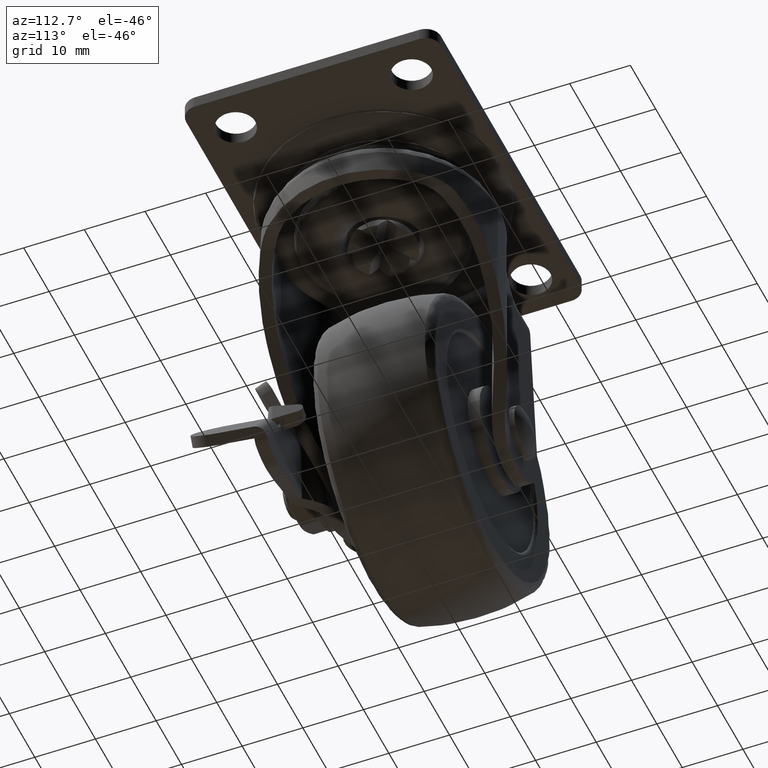
[diagram: clean part render]
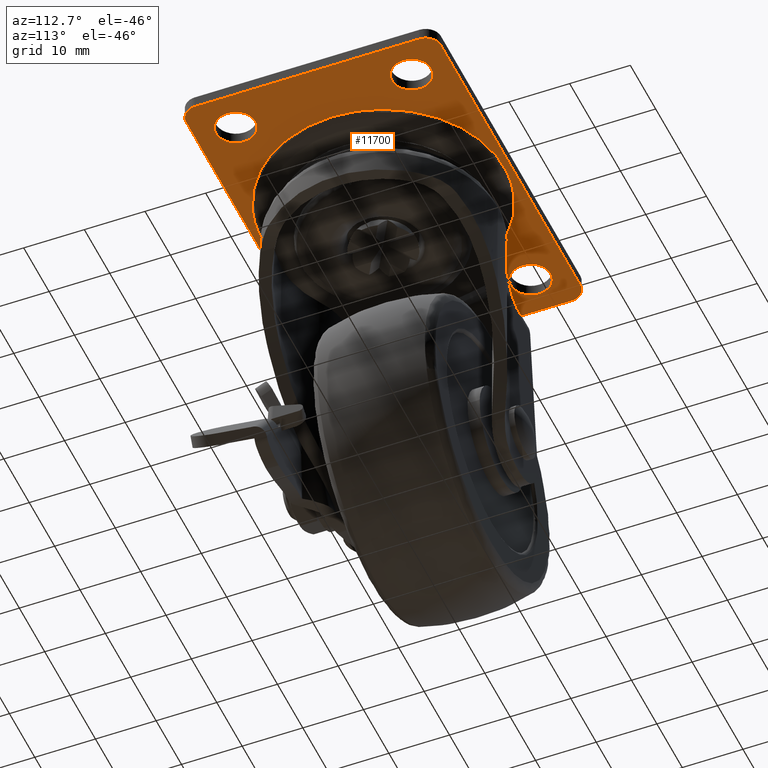
[diagram: same view with one face highlighted and labeled with its STEP entity id]
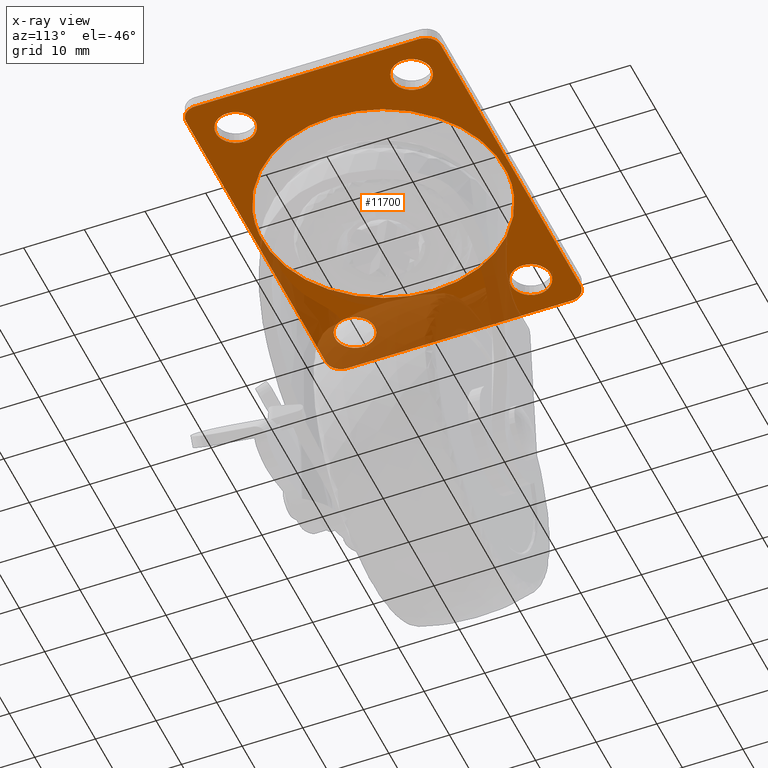
[diagram: x-ray of the same camera — body ghosted, the highlighted face saturated]
A machine part, auxiliary view. The second image highlights one B-rep face of the part: STEP entity #11700.
The next image is the same camera in x-ray: the body ghosted, the highlighted face saturated — about 31% of this face is hidden behind the body in this view.
In plain terms, the highlighted face is a freeform B-spline surface patch.
Its self-contained STEP definition (entity closure, byte-faithful):
#9741=CARTESIAN_POINT('',(-23.301599246305329,17.743938094858450,-1.999963000000160));
#9742=VERTEX_POINT('',#9741);
#9748=CARTESIAN_POINT('',(-20.250007000000000,14.500000000000000,-1.999963000000160));
#9749=VERTEX_POINT('',#9748);
#9750=CARTESIAN_POINT('',(-20.250007000000000,14.500000000000000,-1.999963000000160));
#9751=CARTESIAN_POINT('',(-20.250007000000000,17.557294717248642,-1.999963000000160));
#9752=CARTESIAN_POINT('',(-23.301599246305333,17.743938094858443,-1.999963000000161));
#9760=(BOUNDED_CURVE()B_SPLINE_CURVE(2,(#9750,#9751,#9752),.UNSPECIFIED.,.F.,.U.)B_SPLINE_CURVE_WITH_KNOTS((3,3),(0.500000000000000,0.739332962230990),.UNSPECIFIED.)CURVE()GEOMETRIC_REPRESENTATION_ITEM()RATIONAL_B_SPLINE_CURVE((1.0,0.719603993296027,0.976072041649674))REPRESENTATION_ITEM(''));
#9761=EDGE_CURVE('',#9749,#9742,#9760,.T.);
#9763=CARTESIAN_POINT('',(-23.698414753694671,11.256061905141561,-1.999963000000160));
#9764=VERTEX_POINT('',#9763);
#9765=CARTESIAN_POINT('',(-23.698414753694664,11.256061905141554,-1.999963000000160));
#9766=CARTESIAN_POINT('',(-23.599303480823902,11.250000000000002,-1.999963000000159));
#9767=CARTESIAN_POINT('',(-23.500007000000000,11.250000000000000,-1.999963000000160));
#9768=CARTESIAN_POINT('',(-20.250007000000007,11.250000000000000,-1.999963000000160));
#9769=CARTESIAN_POINT('',(-20.250007000000000,14.500000000000000,-1.999963000000160));
#9777=(BOUNDED_CURVE()B_SPLINE_CURVE(2,(#9765,#9766,#9767,#9768,#9769),.UNSPECIFIED.,.F.,.U.)B_SPLINE_CURVE_WITH_KNOTS((3,2,3),(0.239332962230991,0.250000000000000,0.500000000000000),.UNSPECIFIED.)CURVE()GEOMETRIC_REPRESENTATION_ITEM()RATIONAL_B_SPLINE_CURVE((0.976072041649674,0.987502787890521,1.0,0.707106781186547,1.0))REPRESENTATION_ITEM(''));
#9778=EDGE_CURVE('',#9764,#9749,#9777,.T.);
#9822=CARTESIAN_POINT('',(-26.750007000000000,14.500000000000000,-1.999963000000160));
#9823=VERTEX_POINT('',#9822);
#9824=CARTESIAN_POINT('',(-26.750007000000000,14.500000000000000,-1.999963000000160));
#9825=CARTESIAN_POINT('',(-26.750007000000000,11.442705282751369,-1.999963000000160));
#9826=CARTESIAN_POINT('',(-23.698414753694678,11.256061905141559,-1.999963000000160));
#9834=(BOUNDED_CURVE()B_SPLINE_CURVE(2,(#9824,#9825,#9826),.UNSPECIFIED.,.F.,.U.)B_SPLINE_CURVE_WITH_KNOTS((3,3),(0.0,0.239332962230990),.UNSPECIFIED.)CURVE()GEOMETRIC_REPRESENTATION_ITEM()RATIONAL_B_SPLINE_CURVE((1.0,0.719603993296027,0.976072041649674))REPRESENTATION_ITEM(''));
#9835=EDGE_CURVE('',#9823,#9764,#9834,.T.);
#9837=CARTESIAN_POINT('',(-23.301599246305329,17.743938094858454,-1.999963000000161));
#9838=CARTESIAN_POINT('',(-23.400710519176098,17.750000000000007,-1.999963000000160));
#9839=CARTESIAN_POINT('',(-23.500007000000000,17.750000000000000,-1.999963000000160));
#9840=CARTESIAN_POINT('',(-26.750006999999997,17.750000000000004,-1.999963000000160));
#9841=CARTESIAN_POINT('',(-26.750007000000000,14.500000000000000,-1.999963000000160));
#9849=(BOUNDED_CURVE()B_SPLINE_CURVE(2,(#9837,#9838,#9839,#9840,#9841),.UNSPECIFIED.,.F.,.U.)B_SPLINE_CURVE_WITH_KNOTS((3,2,3),(0.739332962230991,0.750000000000000,1.0),.UNSPECIFIED.)CURVE()GEOMETRIC_REPRESENTATION_ITEM()RATIONAL_B_SPLINE_CURVE((0.976072041649674,0.987502787890521,1.0,0.707106781186547,1.0))REPRESENTATION_ITEM(''));
#9850=EDGE_CURVE('',#9742,#9823,#9849,.T.);
#9923=CARTESIAN_POINT('',(23.698400753694671,17.743938094858450,-1.999963000000160));
#9924=VERTEX_POINT('',#9923);
#9930=CARTESIAN_POINT('',(26.749993000000000,14.500000000000000,-1.999963000000160));
#9931=VERTEX_POINT('',#9930);
#9932=CARTESIAN_POINT('',(26.749993000000000,14.500000000000000,-1.999963000000160));
#9933=CARTESIAN_POINT('',(26.749992999999996,17.557294717248645,-1.999963000000161));
#9934=CARTESIAN_POINT('',(23.698400753694667,17.743938094858446,-1.999963000000160));
#9942=(BOUNDED_CURVE()B_SPLINE_CURVE(2,(#9932,#9933,#9934),.UNSPECIFIED.,.F.,.U.)B_SPLINE_CURVE_WITH_KNOTS((3,3),(0.500000000000000,0.739332962230991),.UNSPECIFIED.)CURVE()GEOMETRIC_REPRESENTATION_ITEM()RATIONAL_B_SPLINE_CURVE((1.0,0.719603993296027,0.976072041649675))REPRESENTATION_ITEM(''));
#9943=EDGE_CURVE('',#9931,#9924,#9942,.T.);
#9945=CARTESIAN_POINT('',(23.301585246305329,11.256061905141561,-1.999963000000161));
#9946=VERTEX_POINT('',#9945);
#9947=CARTESIAN_POINT('',(23.301585246305340,11.256061905141555,-1.999963000000160));
#9948=CARTESIAN_POINT('',(23.400696519176108,11.250000000000004,-1.999963000000160));
#9949=CARTESIAN_POINT('',(23.499993000000000,11.250000000000000,-1.999963000000160));
#9950=CARTESIAN_POINT('',(26.749993000000003,11.250000000000000,-1.999963000000160));
#9951=CARTESIAN_POINT('',(26.749993000000000,14.500000000000000,-1.999963000000160));
#9959=(BOUNDED_CURVE()B_SPLINE_CURVE(2,(#9947,#9948,#9949,#9950,#9951),.UNSPECIFIED.,.F.,.U.)B_SPLINE_CURVE_WITH_KNOTS((3,2,3),(0.239332962230991,0.250000000000000,0.500000000000000),.UNSPECIFIED.)CURVE()GEOMETRIC_REPRESENTATION_ITEM()RATIONAL_B_SPLINE_CURVE((0.976072041649674,0.987502787890521,1.0,0.707106781186547,1.0))REPRESENTATION_ITEM(''));
#9960=EDGE_CURVE('',#9946,#9931,#9959,.T.);
#10004=CARTESIAN_POINT('',(20.249993000000000,14.500000000000000,-1.999963000000160));
#10005=VERTEX_POINT('',#10004);
#10006=CARTESIAN_POINT('',(20.249993000000000,14.500000000000000,-1.999963000000160));
#10007=CARTESIAN_POINT('',(20.249993000000003,11.442705282751366,-1.999963000000161));
#10008=CARTESIAN_POINT('',(23.301585246305336,11.256061905141554,-1.999963000000160));
#10016=(BOUNDED_CURVE()B_SPLINE_CURVE(2,(#10006,#10007,#10008),.UNSPECIFIED.,.F.,.U.)B_SPLINE_CURVE_WITH_KNOTS((3,3),(0.0,0.239332962230991),.UNSPECIFIED.)CURVE()GEOMETRIC_REPRESENTATION_ITEM()RATIONAL_B_SPLINE_CURVE((1.0,0.719603993296027,0.976072041649674))REPRESENTATION_ITEM(''));
#10017=EDGE_CURVE('',#10005,#9946,#10016,.T.);
#10019=CARTESIAN_POINT('',(23.698400753694678,17.743938094858454,-1.999963000000161));
#10020=CARTESIAN_POINT('',(23.599289480823906,17.750000000000007,-1.999963000000160));
#10021=CARTESIAN_POINT('',(23.499993000000000,17.750000000000000,-1.999963000000160));
#10022=CARTESIAN_POINT('',(20.249993000000003,17.750000000000004,-1.999963000000160));
#10023=CARTESIAN_POINT('',(20.249993000000000,14.500000000000000,-1.999963000000160));
#10031=(BOUNDED_CURVE()B_SPLINE_CURVE(2,(#10019,#10020,#10021,#10022,#10023),.UNSPECIFIED.,.F.,.U.)B_SPLINE_CURVE_WITH_KNOTS((3,2,3),(0.739332962230991,0.750000000000000,1.0),.UNSPECIFIED.)CURVE()GEOMETRIC_REPRESENTATION_ITEM()RATIONAL_B_SPLINE_CURVE((0.976072041649674,0.987502787890521,1.0,0.707106781186547,1.0))REPRESENTATION_ITEM(''));
#10032=EDGE_CURVE('',#9924,#10005,#10031,.T.);
#10257=CARTESIAN_POINT('',(-23.301599246305329,-11.256061905141561,-1.999963000000160));
#10258=VERTEX_POINT('',#10257);
#10264=CARTESIAN_POINT('',(-20.250007000000000,-14.500000000000000,-1.999963000000160));
#10265=VERTEX_POINT('',#10264);
#10266=CARTESIAN_POINT('',(-20.250007000000000,-14.500000000000000,-1.999963000000160));
#10267=CARTESIAN_POINT('',(-20.250007000000000,-11.442705282751369,-1.999963000000160));
#10268=CARTESIAN_POINT('',(-23.301599246305333,-11.256061905141557,-1.999963000000161));
#10276=(BOUNDED_CURVE()B_SPLINE_CURVE(2,(#10266,#10267,#10268),.UNSPECIFIED.,.F.,.U.)B_SPLINE_CURVE_WITH_KNOTS((3,3),(0.500000000000000,0.739332962230990),.UNSPECIFIED.)CURVE()GEOMETRIC_REPRESENTATION_ITEM()RATIONAL_B_SPLINE_CURVE((1.0,0.719603993296027,0.976072041649674))REPRESENTATION_ITEM(''));
#10277=EDGE_CURVE('',#10265,#10258,#10276,.T.);
#10279=CARTESIAN_POINT('',(-23.698414753694671,-17.743938094858450,-1.999963000000161));
#10280=VERTEX_POINT('',#10279);
#10281=CARTESIAN_POINT('',(-23.698414753694671,-17.743938094858454,-1.999963000000161));
#10282=CARTESIAN_POINT('',(-23.599303480823892,-17.750000000000007,-1.999963000000160));
#10283=CARTESIAN_POINT('',(-23.500007000000000,-17.750000000000000,-1.999963000000160));
#10284=CARTESIAN_POINT('',(-20.250007000000007,-17.750000000000004,-1.999963000000160));
#10285=CARTESIAN_POINT('',(-20.250007000000000,-14.500000000000000,-1.999963000000160));
#10293=(BOUNDED_CURVE()B_SPLINE_CURVE(2,(#10281,#10282,#10283,#10284,#10285),.UNSPECIFIED.,.F.,.U.)B_SPLINE_CURVE_WITH_KNOTS((3,2,3),(0.239332962230990,0.250000000000000,0.500000000000000),.UNSPECIFIED.)CURVE()GEOMETRIC_REPRESENTATION_ITEM()RATIONAL_B_SPLINE_CURVE((0.976072041649674,0.987502787890521,1.0,0.707106781186547,1.0))REPRESENTATION_ITEM(''));
#10294=EDGE_CURVE('',#10280,#10265,#10293,.T.);
#10338=CARTESIAN_POINT('',(-26.750007000000000,-14.500000000000000,-1.999963000000160));
#10339=VERTEX_POINT('',#10338);
#10340=CARTESIAN_POINT('',(-26.750007000000000,-14.500000000000000,-1.999963000000160));
#10341=CARTESIAN_POINT('',(-26.750007000000004,-17.557294717248645,-1.999963000000161));
#10342=CARTESIAN_POINT('',(-23.698414753694664,-17.743938094858446,-1.999963000000160));
#10350=(BOUNDED_CURVE()B_SPLINE_CURVE(2,(#10340,#10341,#10342),.UNSPECIFIED.,.F.,.U.)B_SPLINE_CURVE_WITH_KNOTS((3,3),(0.0,0.239332962230991),.UNSPECIFIED.)CURVE()GEOMETRIC_REPRESENTATION_ITEM()RATIONAL_B_SPLINE_CURVE((1.0,0.719603993296027,0.976072041649675))REPRESENTATION_ITEM(''));
#10351=EDGE_CURVE('',#10339,#10280,#10350,.T.);
#10353=CARTESIAN_POINT('',(-23.301599246305329,-11.256061905141557,-1.999963000000161));
#10354=CARTESIAN_POINT('',(-23.400710519176098,-11.250000000000004,-1.999963000000160));
#10355=CARTESIAN_POINT('',(-23.500007000000000,-11.250000000000000,-1.999963000000160));
#10356=CARTESIAN_POINT('',(-26.750006999999997,-11.250000000000000,-1.999963000000160));
#10357=CARTESIAN_POINT('',(-26.750007000000000,-14.500000000000000,-1.999963000000160));
#10365=(BOUNDED_CURVE()B_SPLINE_CURVE(2,(#10353,#10354,#10355,#10356,#10357),.UNSPECIFIED.,.F.,.U.)B_SPLINE_CURVE_WITH_KNOTS((3,2,3),(0.739332962230991,0.750000000000000,1.0),.UNSPECIFIED.)CURVE()GEOMETRIC_REPRESENTATION_ITEM()RATIONAL_B_SPLINE_CURVE((0.976072041649674,0.987502787890521,1.0,0.707106781186547,1.0))REPRESENTATION_ITEM(''));
#10366=EDGE_CURVE('',#10258,#10339,#10365,.T.);
#10439=CARTESIAN_POINT('',(23.698400753694671,-11.256061905141561,-1.999963000000161));
#10440=VERTEX_POINT('',#10439);
#10446=CARTESIAN_POINT('',(26.749993000000000,-14.500000000000000,-1.999963000000160));
#10447=VERTEX_POINT('',#10446);
#10448=CARTESIAN_POINT('',(26.749993000000000,-14.500000000000000,-1.999963000000160));
#10449=CARTESIAN_POINT('',(26.749992999999996,-11.442705282751362,-1.999963000000161));
#10450=CARTESIAN_POINT('',(23.698400753694667,-11.256061905141562,-1.999963000000160));
#10458=(BOUNDED_CURVE()B_SPLINE_CURVE(2,(#10448,#10449,#10450),.UNSPECIFIED.,.F.,.U.)B_SPLINE_CURVE_WITH_KNOTS((3,3),(0.500000000000000,0.739332962230991),.UNSPECIFIED.)CURVE()GEOMETRIC_REPRESENTATION_ITEM()RATIONAL_B_SPLINE_CURVE((1.0,0.719603993296027,0.976072041649675))REPRESENTATION_ITEM(''));
#10459=EDGE_CURVE('',#10447,#10440,#10458,.T.);
#10461=CARTESIAN_POINT('',(23.301585246305329,-17.743938094858439,-1.999963000000160));
#10462=VERTEX_POINT('',#10461);
#10463=CARTESIAN_POINT('',(23.301585246305333,-17.743938094858443,-1.999963000000161));
#10464=CARTESIAN_POINT('',(23.400696519176101,-17.750000000000004,-1.999963000000160));
#10465=CARTESIAN_POINT('',(23.499993000000000,-17.750000000000000,-1.999963000000160));
#10466=CARTESIAN_POINT('',(26.749993000000003,-17.750000000000004,-1.999963000000160));
#10467=CARTESIAN_POINT('',(26.749993000000000,-14.500000000000000,-1.999963000000160));
#10475=(BOUNDED_CURVE()B_SPLINE_CURVE(2,(#10463,#10464,#10465,#10466,#10467),.UNSPECIFIED.,.F.,.U.)B_SPLINE_CURVE_WITH_KNOTS((3,2,3),(0.239332962230990,0.250000000000000,0.500000000000000),.UNSPECIFIED.)CURVE()GEOMETRIC_REPRESENTATION_ITEM()RATIONAL_B_SPLINE_CURVE((0.976072041649674,0.987502787890520,1.0,0.707106781186547,1.0))REPRESENTATION_ITEM(''));
#10476=EDGE_CURVE('',#10462,#10447,#10475,.T.);
#10520=CARTESIAN_POINT('',(20.249993000000000,-14.500000000000000,-1.999963000000160));
#10521=VERTEX_POINT('',#10520);
#10522=CARTESIAN_POINT('',(20.249993000000000,-14.500000000000000,-1.999963000000160));
#10523=CARTESIAN_POINT('',(20.249993000000000,-17.557294717248631,-1.999963000000160));
#10524=CARTESIAN_POINT('',(23.301585246305326,-17.743938094858443,-1.999963000000160));
#10532=(BOUNDED_CURVE()B_SPLINE_CURVE(2,(#10522,#10523,#10524),.UNSPECIFIED.,.F.,.U.)B_SPLINE_CURVE_WITH_KNOTS((3,3),(0.0,0.239332962230990),.UNSPECIFIED.)CURVE()GEOMETRIC_REPRESENTATION_ITEM()RATIONAL_B_SPLINE_CURVE((1.0,0.719603993296027,0.976072041649674))REPRESENTATION_ITEM(''));
#10533=EDGE_CURVE('',#10521,#10462,#10532,.T.);
#10535=CARTESIAN_POINT('',(23.698400753694667,-11.256061905141557,-1.999963000000161));
#10536=CARTESIAN_POINT('',(23.599289480823895,-11.250000000000004,-1.999963000000160));
#10537=CARTESIAN_POINT('',(23.499993000000000,-11.250000000000000,-1.999963000000160));
#10538=CARTESIAN_POINT('',(20.249993000000003,-11.250000000000000,-1.999963000000160));
#10539=CARTESIAN_POINT('',(20.249993000000000,-14.500000000000000,-1.999963000000160));
#10547=(BOUNDED_CURVE()B_SPLINE_CURVE(2,(#10535,#10536,#10537,#10538,#10539),.UNSPECIFIED.,.F.,.U.)B_SPLINE_CURVE_WITH_KNOTS((3,2,3),(0.739332962230990,0.750000000000000,1.0),.UNSPECIFIED.)CURVE()GEOMETRIC_REPRESENTATION_ITEM()RATIONAL_B_SPLINE_CURVE((0.976072041649674,0.987502787890520,1.0,0.707106781186547,1.0))REPRESENTATION_ITEM(''));
#10548=EDGE_CURVE('',#10440,#10521,#10547,.T.);
#10590=CARTESIAN_POINT('',(-1.218142045661598,19.916446394423080,-1.999962999985781));
#10591=VERTEX_POINT('',#10590);
#10597=CARTESIAN_POINT('',(19.953664000000099,7.105427E-015,-1.999963000000205));
#10598=VERTEX_POINT('',#10597);
#10599=CARTESIAN_POINT('',(-1.218142045661598,19.916446394423076,-1.999962999985781));
#10600=CARTESIAN_POINT('',(-0.609639573178200,19.953664000010864,-1.999962999985989));
#10601=CARTESIAN_POINT('',(-6.481087E-013,19.953664000010690,-1.999962999986209));
#10602=CARTESIAN_POINT('',(19.953663999999787,19.953664000005233,-1.999962999993421));
#10603=CARTESIAN_POINT('',(19.953664000000099,7.105427E-015,-1.999963000000205));
#10611=(BOUNDED_CURVE()B_SPLINE_CURVE(2,(#10599,#10600,#10601,#10602,#10603),.UNSPECIFIED.,.F.,.U.)B_SPLINE_CURVE_WITH_KNOTS((3,2,3),(0.239332962241174,0.250000000000000,0.500000000000000),.UNSPECIFIED.)CURVE()GEOMETRIC_REPRESENTATION_ITEM()RATIONAL_B_SPLINE_CURVE((0.976072041671500,0.987502787902451,1.0,0.707106781186547,1.0))REPRESENTATION_ITEM(''));
#10612=EDGE_CURVE('',#10591,#10598,#10611,.T.);
#10614=CARTESIAN_POINT('',(1.218142045661600,-19.916446394423058,-1.999962999985782));
#10615=VERTEX_POINT('',#10614);
#10616=CARTESIAN_POINT('',(19.953664000000099,7.105427E-015,-1.999963000000205));
#10617=CARTESIAN_POINT('',(19.953664000000430,-18.770532781716742,-1.999962999992994));
#10618=CARTESIAN_POINT('',(1.218142045661600,-19.916446394423065,-1.999962999985782));
#10626=(BOUNDED_CURVE()B_SPLINE_CURVE(2,(#10616,#10617,#10618),.UNSPECIFIED.,.F.,.U.)B_SPLINE_CURVE_WITH_KNOTS((3,3),(0.500000000000000,0.739332962241174),.UNSPECIFIED.)CURVE()GEOMETRIC_REPRESENTATION_ITEM()RATIONAL_B_SPLINE_CURVE((1.0,0.719603993284096,0.976072041671500))REPRESENTATION_ITEM(''));
#10627=EDGE_CURVE('',#10598,#10615,#10626,.T.);
#10657=CARTESIAN_POINT('',(-19.953664000000099,7.105427E-015,-1.999963000000205));
#10658=VERTEX_POINT('',#10657);
#10659=CARTESIAN_POINT('',(1.218142045661600,-19.916446394423065,-1.999962999985782));
#10660=CARTESIAN_POINT('',(0.609639573178201,-19.953664000010846,-1.999962999985990));
#10661=CARTESIAN_POINT('',(6.474623E-013,-19.953664000010690,-1.999962999986210));
#10662=CARTESIAN_POINT('',(-19.953663999999787,-19.953664000005233,-1.999962999993421));
#10663=CARTESIAN_POINT('',(-19.953664000000099,7.105427E-015,-1.999963000000205));
#10671=(BOUNDED_CURVE()B_SPLINE_CURVE(2,(#10659,#10660,#10661,#10662,#10663),.UNSPECIFIED.,.F.,.U.)B_SPLINE_CURVE_WITH_KNOTS((3,2,3),(0.739332962241174,0.750000000000000,1.0),.UNSPECIFIED.)CURVE()GEOMETRIC_REPRESENTATION_ITEM()RATIONAL_B_SPLINE_CURVE((0.976072041671500,0.987502787902451,1.0,0.707106781186547,1.0))REPRESENTATION_ITEM(''));
#10672=EDGE_CURVE('',#10615,#10658,#10671,.T.);
#10674=CARTESIAN_POINT('',(-19.953664000000099,7.105427E-015,-1.999963000000205));
#10675=CARTESIAN_POINT('',(-19.953664000000430,18.770532781716756,-1.999962999992994));
#10676=CARTESIAN_POINT('',(-1.218142045661598,19.916446394423076,-1.999962999985781));
#10684=(BOUNDED_CURVE()B_SPLINE_CURVE(2,(#10674,#10675,#10676),.UNSPECIFIED.,.F.,.U.)B_SPLINE_CURVE_WITH_KNOTS((3,3),(0.0,0.239332962241174),.UNSPECIFIED.)CURVE()GEOMETRIC_REPRESENTATION_ITEM()RATIONAL_B_SPLINE_CURVE((1.0,0.719603993284096,0.976072041671500))REPRESENTATION_ITEM(''));
#10685=EDGE_CURVE('',#10658,#10591,#10684,.T.);
#11575=CARTESIAN_POINT('',(-32.997006883708472,23.097899918595861,-1.999963000000205));
#11576=CARTESIAN_POINT('',(32.996994493033782,23.097899918595861,-1.999963000000205));
#11577=CARTESIAN_POINT('',(-32.997006883708472,-23.097901045123638,-1.999963000000205));
#11578=CARTESIAN_POINT('',(32.996994493033782,-23.097901045123638,-1.999963000000205));
#11579=B_SPLINE_SURFACE_WITH_KNOTS('',1,1,((#11575,#11577),(#11576,#11578)),.UNSPECIFIED.,.F.,.F.,.U.,(2,2),(2,2),(0.0,65.994001376742233),(0.0,46.195800963719492),.UNSPECIFIED.);
#11580=CARTESIAN_POINT('',(29.999993000000000,18.500000000000000,-1.999963000000160));
#11581=VERTEX_POINT('',#11580);
#11582=CARTESIAN_POINT('',(27.499993000000000,21.0,-1.999963000000160));
#11583=VERTEX_POINT('',#11582);
#11584=CARTESIAN_POINT('',(29.999993000000000,18.500000000000000,-1.999963000000160));
#11585=CARTESIAN_POINT('',(29.999993000000000,21.000000000000004,-1.999963000000159));
#11586=CARTESIAN_POINT('',(27.499993000000000,21.0,-1.999963000000160));
#11594=(BOUNDED_CURVE()B_SPLINE_CURVE(2,(#11584,#11585,#11586),.UNSPECIFIED.,.F.,.U.)CURVE()GEOMETRIC_REPRESENTATION_ITEM()QUASI_UNIFORM_CURVE()RATIONAL_B_SPLINE_CURVE((1.0,0.707106781186548,1.0))REPRESENTATION_ITEM(''));
#11595=EDGE_CURVE('',#11581,#11583,#11594,.T.);
#11596=ORIENTED_EDGE('',*,*,#11595,.F.);
#11597=CARTESIAN_POINT('',(29.999993000000000,-18.500000000000000,-1.999963000000160));
#11598=VERTEX_POINT('',#11597);
#11599=CARTESIAN_POINT('',(29.999993000000000,-18.500000000000000,-1.999963000000160));
#11600=CARTESIAN_POINT('',(29.999993000000000,18.500000000000000,-1.999963000000160));
#11601=QUASI_UNIFORM_CURVE('',1,(#11599,#11600),.UNSPECIFIED.,.F.,.U.);
#11602=EDGE_CURVE('',#11598,#11581,#11601,.T.);
#11603=ORIENTED_EDGE('',*,*,#11602,.F.);
#11604=CARTESIAN_POINT('',(27.499993000000000,-21.0,-1.999963000000160));
#11605=VERTEX_POINT('',#11604);
#11606=CARTESIAN_POINT('',(27.499993000000000,-21.0,-1.999963000000160));
#11607=CARTESIAN_POINT('',(29.999993000000000,-21.000000000000004,-1.999963000000159));
#11608=CARTESIAN_POINT('',(29.999993000000000,-18.500000000000000,-1.999963000000160));
#11616=(BOUNDED_CURVE()B_SPLINE_CURVE(2,(#11606,#11607,#11608),.UNSPECIFIED.,.F.,.U.)CURVE()GEOMETRIC_REPRESENTATION_ITEM()QUASI_UNIFORM_CURVE()RATIONAL_B_SPLINE_CURVE((1.0,0.707106781186548,1.0))REPRESENTATION_ITEM(''));
#11617=EDGE_CURVE('',#11605,#11598,#11616,.T.);
#11618=ORIENTED_EDGE('',*,*,#11617,.F.);
#11619=CARTESIAN_POINT('',(-27.500007000000100,-21.0,-1.999963000000160));
#11620=VERTEX_POINT('',#11619);
#11621=CARTESIAN_POINT('',(-27.500007000000100,-21.0,-1.999963000000160));
#11622=CARTESIAN_POINT('',(27.499993000000000,-21.0,-1.999963000000160));
#11623=QUASI_UNIFORM_CURVE('',1,(#11621,#11622),.UNSPECIFIED.,.F.,.U.);
#11624=EDGE_CURVE('',#11620,#11605,#11623,.T.);
#11625=ORIENTED_EDGE('',*,*,#11624,.F.);
#11626=CARTESIAN_POINT('',(-30.000007000000000,-18.500000000000000,-1.999963000000160));
#11627=VERTEX_POINT('',#11626);
#11628=CARTESIAN_POINT('',(-30.000007000000100,-18.500000000000000,-1.999963000000160));
#11629=CARTESIAN_POINT('',(-30.000007000000107,-21.000000000000004,-1.999963000000159));
#11630=CARTESIAN_POINT('',(-27.500007000000100,-21.0,-1.999963000000160));
#11638=(BOUNDED_CURVE()B_SPLINE_CURVE(2,(#11628,#11629,#11630),.UNSPECIFIED.,.F.,.U.)CURVE()GEOMETRIC_REPRESENTATION_ITEM()QUASI_UNIFORM_CURVE()RATIONAL_B_SPLINE_CURVE((1.0,0.707106781186548,1.0))REPRESENTATION_ITEM(''));
#11639=EDGE_CURVE('',#11627,#11620,#11638,.T.);
#11640=ORIENTED_EDGE('',*,*,#11639,.F.);
#11641=CARTESIAN_POINT('',(-30.000007000000100,18.500000000000000,-1.999963000000160));
#11642=VERTEX_POINT('',#11641);
#11643=CARTESIAN_POINT('',(-30.000007000000100,18.500000000000000,-1.999963000000160));
#11644=CARTESIAN_POINT('',(-30.000007000000000,-18.500000000000000,-1.999963000000160));
#11645=QUASI_UNIFORM_CURVE('',1,(#11643,#11644),.UNSPECIFIED.,.F.,.U.);
#11646=EDGE_CURVE('',#11642,#11627,#11645,.T.);
#11647=ORIENTED_EDGE('',*,*,#11646,.F.);
#11648=CARTESIAN_POINT('',(-27.500007000000100,21.0,-1.999963000000160));
#11649=VERTEX_POINT('',#11648);
#11650=CARTESIAN_POINT('',(-27.500007000000100,21.0,-1.999963000000160));
#11651=CARTESIAN_POINT('',(-30.000007000000107,21.000000000000004,-1.999963000000159));
#11652=CARTESIAN_POINT('',(-30.000007000000100,18.500000000000000,-1.999963000000160));
#11660=(BOUNDED_CURVE()B_SPLINE_CURVE(2,(#11650,#11651,#11652),.UNSPECIFIED.,.F.,.U.)CURVE()GEOMETRIC_REPRESENTATION_ITEM()QUASI_UNIFORM_CURVE()RATIONAL_B_SPLINE_CURVE((1.0,0.707106781186548,1.0))REPRESENTATION_ITEM(''));
#11661=EDGE_CURVE('',#11649,#11642,#11660,.T.);
#11662=ORIENTED_EDGE('',*,*,#11661,.F.);
#11663=CARTESIAN_POINT('',(27.499993000000000,21.0,-1.999963000000160));
#11664=CARTESIAN_POINT('',(-27.500007000000100,21.0,-1.999963000000160));
#11665=QUASI_UNIFORM_CURVE('',1,(#11663,#11664),.UNSPECIFIED.,.F.,.U.);
#11666=EDGE_CURVE('',#11583,#11649,#11665,.T.);
#11667=ORIENTED_EDGE('',*,*,#11666,.F.);
#11668=EDGE_LOOP('',(#11596,#11603,#11618,#11625,#11640,#11647,#11662,#11667));
#11669=FACE_OUTER_BOUND('',#11668,.T.);
#11670=ORIENTED_EDGE('',*,*,#10685,.F.);
#11671=ORIENTED_EDGE('',*,*,#10672,.F.);
#11672=ORIENTED_EDGE('',*,*,#10627,.F.);
#11673=ORIENTED_EDGE('',*,*,#10612,.F.);
#11674=EDGE_LOOP('',(#11670,#11671,#11672,#11673));
#11675=FACE_BOUND('',#11674,.T.);
#11676=ORIENTED_EDGE('',*,*,#10459,.T.);
#11677=ORIENTED_EDGE('',*,*,#10548,.T.);
#11678=ORIENTED_EDGE('',*,*,#10533,.T.);
#11679=ORIENTED_EDGE('',*,*,#10476,.T.);
#11680=EDGE_LOOP('',(#11676,#11677,#11678,#11679));
#11681=FACE_BOUND('',#11680,.T.);
#11682=ORIENTED_EDGE('',*,*,#10277,.T.);
#11683=ORIENTED_EDGE('',*,*,#10366,.T.);
#11684=ORIENTED_EDGE('',*,*,#10351,.T.);
#11685=ORIENTED_EDGE('',*,*,#10294,.T.);
#11686=EDGE_LOOP('',(#11682,#11683,#11684,#11685));
#11687=FACE_BOUND('',#11686,.T.);
#11688=ORIENTED_EDGE('',*,*,#9943,.T.);
#11689=ORIENTED_EDGE('',*,*,#10032,.T.);
#11690=ORIENTED_EDGE('',*,*,#10017,.T.);
#11691=ORIENTED_EDGE('',*,*,#9960,.T.);
#11692=EDGE_LOOP('',(#11688,#11689,#11690,#11691));
#11693=FACE_BOUND('',#11692,.T.);
#11694=ORIENTED_EDGE('',*,*,#9761,.T.);
#11695=ORIENTED_EDGE('',*,*,#9850,.T.);
#11696=ORIENTED_EDGE('',*,*,#9835,.T.);
#11697=ORIENTED_EDGE('',*,*,#9778,.T.);
#11698=EDGE_LOOP('',(#11694,#11695,#11696,#11697));
#11699=FACE_BOUND('',#11698,.T.);
#11700=ADVANCED_FACE('',(#11669,#11675,#11681,#11687,#11693,#11699),#11579,.T.);